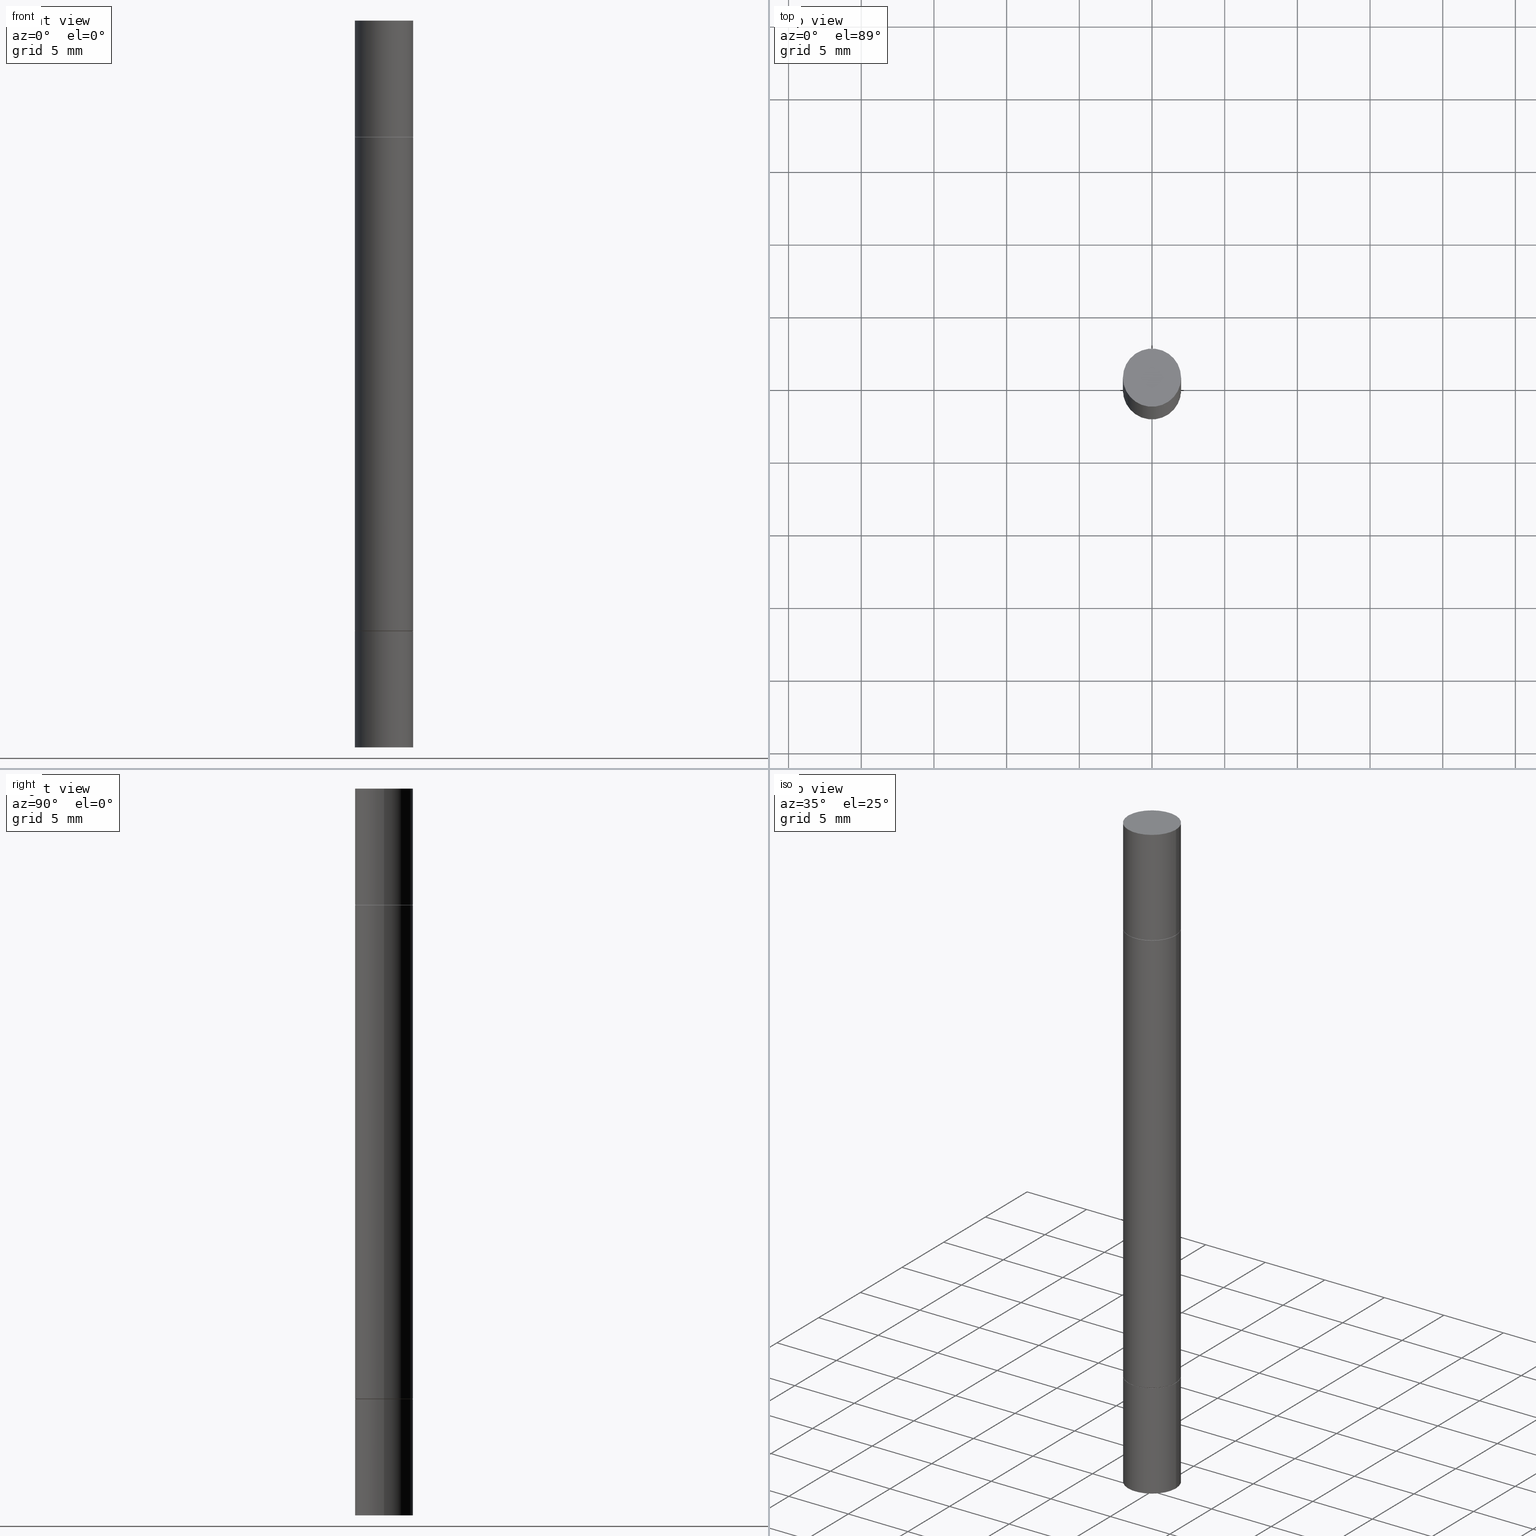
[diagram: canonical four-view strip — front | top / right | iso, engineering-drawing reading convention]
A machine part, canonical four-view strip (front | top / right | iso — engineering-drawing reading convention). The complete STEP part file that produces these views, byte-faithful:
ISO-10303-21;
HEADER;
FILE_DESCRIPTION (( 'STEP AP203' ),
    '1' );
FILE_NAME ('48932.STEP',
    '2024-03-04T15:49:05',
    ( '' ),
    ( '' ),
    'SwSTEP 2.0',
    'SolidWorks 2023',
    '' );
FILE_SCHEMA (( 'CONFIG_CONTROL_DESIGN' ));
ENDSEC;

DATA;
#1 = COORDINATED_UNIVERSAL_TIME_OFFSET ( 5, 0, .BEHIND. ) ;
#2 = CIRCLE ( 'NONE', #142, 0.07875000000000000056 ) ;
#3 = DIRECTION ( 'NONE',  ( -2.445468806185136597E-29, -3.492890411551752677E-15, -1.000000000000000000 ) ) ;
#4 = APPROVAL_DATE_TIME ( #152, #138 ) ;
#5 = ADVANCED_FACE ( 'NONE', ( #344 ), #143, .T. ) ;
#6 = FACE_OUTER_BOUND ( 'NONE', #299, .T. ) ;
#7 = EDGE_LOOP ( 'NONE', ( #641, #482, #228, #589 ) ) ;
#8 = EDGE_CURVE ( 'NONE', #506, #237, #113, .T. ) ;
#9 = VECTOR ( 'NONE', #126, 39.37007874015748143 ) ;
#10 = AXIS2_PLACEMENT_3D ( 'NONE', #165, #583, #389 ) ;
#11 = CARTESIAN_POINT ( 'NONE',  ( 0.000000000000000000, -6.874367895326177521E-15, -1.968499999999999694 ) ) ;
#12 = DIRECTION ( 'NONE',  ( 2.445468806185136597E-29, 3.492890411551752677E-15, 1.000000000000000000 ) ) ;
#13 = DIRECTION ( 'NONE',  ( 1.000000000000000000, -6.982962677686265922E-15, 9.839502134516470631E-33 ) ) ;
#14 = DIRECTION ( 'NONE',  ( 1.000000000000000000, -6.982962677686273021E-15, 0.000000000000000000 ) ) ;
#15 = DIRECTION ( 'NONE',  ( 1.000000000000000000, -6.982962677686268288E-15, 0.000000000000000000 ) ) ;
#16 = ORIENTED_EDGE ( 'NONE', *, *, #133, .F. ) ;
#17 = CARTESIAN_POINT ( 'NONE',  ( 0.07874999999999997280, -6.319581223306091410E-15, -1.652499999999999858 ) ) ;
#18 = VERTEX_POINT ( 'NONE', #177 ) ;
#19 = ORIENTED_EDGE ( 'NONE', *, *, #376, .T. ) ;
#20 = CARTESIAN_POINT ( 'NONE',  ( 0.000000000000000000, -6.874367895326177521E-15, -1.968499999999999694 ) ) ;
#21 = CONICAL_SURFACE ( 'NONE', #149, 0.07774999999999999967, 0.7853981633974056464 ) ;
#22 = CIRCLE ( 'NONE', #556, 0.07874999999999987566 ) ;
#23 = DIRECTION ( 'NONE',  ( 2.445468806185136597E-29, 3.492890411551752677E-15, 1.000000000000000000 ) ) ;
#24 = ORIENTED_EDGE ( 'NONE', *, *, #133, .T. ) ;
#25 = EDGE_CURVE ( 'NONE', #595, #18, #361, .T. ) ;
#26 = DIRECTION ( 'NONE',  ( -2.438088387897959769E-29, -3.492890411551753071E-15, -1.000000000000000000 ) ) ;
#27 = DIRECTION ( 'NONE',  ( -2.445468806185136877E-29, -3.492890411551753071E-15, -1.000000000000000000 ) ) ;
#28 = EDGE_LOOP ( 'NONE', ( #447, #532, #125, #76 ) ) ;
#29 = ORIENTED_EDGE ( 'NONE', *, *, #120, .F. ) ;
#30 = DIRECTION ( 'NONE',  ( -2.445468806185136597E-29, 3.491481338843145583E-15, 1.000000000000000000 ) ) ;
#31 = CC_DESIGN_PERSON_AND_ORGANIZATION_ASSIGNMENT ( #637, #471, ( #222 ) ) ;
#32 = ORIENTED_EDGE ( 'NONE', *, *, #325, .T. ) ;
#33 = VERTEX_POINT ( 'NONE', #655 ) ;
#34 = CARTESIAN_POINT ( 'NONE',  ( 4.813905344975441835E-29, 1.386879813447681415E-18, 2.731847993664263218E-16 ) ) ;
#35 = DIRECTION ( 'NONE',  ( -2.445468806185136597E-29, 3.491481338843145583E-15, 1.000000000000000000 ) ) ;
#36 = CIRCLE ( 'NONE', #525, 0.07874999999999997280 ) ;
#37 = CALENDAR_DATE ( 2024, 4, 3 ) ;
#38 = ORIENTED_EDGE ( 'NONE', *, *, #99, .T. ) ;
#39 = PLANE ( 'NONE',  #463 ) ;
#40 = EDGE_CURVE ( 'NONE', #195, #324, #334, .T. ) ;
#41 = CARTESIAN_POINT ( 'NONE',  ( 4.043582671027123201E-29, -1.098873599825354270E-15, -0.3149999999999997802 ) ) ;
#42 = CARTESIAN_POINT ( 'NONE',  ( -0.07774999999999999967, -5.654698804986176969E-16, -0.3149999999999997802 ) ) ;
#43 = CIRCLE ( 'NONE', #256, 0.07874999999999997280 ) ;
#44 = CC_DESIGN_APPROVAL ( #106, ( #224 ) ) ;
#45 = DIRECTION ( 'NONE',  ( 1.000000000000000000, -6.982962677686266711E-15, 0.000000000000000000 ) ) ;
#46 = EDGE_CURVE ( 'NONE', #78, #614, #183, .T. ) ;
#47 = CALENDAR_DATE ( 2024, 4, 3 ) ;
#48 = DIRECTION ( 'NONE',  ( -1.000000000000000000, 6.982962677686265922E-15, -9.839502134516470631E-33 ) ) ;
#49 = ORIENTED_EDGE ( 'NONE', *, *, #8, .T. ) ;
#50 = PLANE ( 'NONE',  #486 ) ;
#51 = DIRECTION ( 'NONE',  ( 1.000000000000000000, -6.982962677686261977E-15, 0.000000000000000000 ) ) ;
#52 = CARTESIAN_POINT ( 'NONE',  ( 0.000000000000000000, -6.874367895326177521E-15, -1.968499999999999694 ) ) ;
#53 = ADVANCED_FACE ( 'NONE', ( #647 ), #339, .F. ) ;
#54 = AXIS2_PLACEMENT_3D ( 'NONE', #520, #677, #104 ) ;
#55 = FACE_OUTER_BOUND ( 'NONE', #260, .T. ) ;
#56 = SHAPE_DEFINITION_REPRESENTATION ( #426, #371 ) ;
#57 = AXIS2_PLACEMENT_3D ( 'NONE', #34, #545, #246 ) ;
#58 = CARTESIAN_POINT ( 'NONE',  ( 4.043582671027123201E-29, -5.773164393777141072E-15, -1.653499999999999970 ) ) ;
#59 = MANIFOLD_SOLID_BREP ( 'Mirror1[1]', #390 ) ;
#60 = DIRECTION ( 'NONE',  ( -0.7071067811865173747, 2.381258160590954538E-15, -0.7071067811865776598 ) ) ;
#61 = MANIFOLD_SOLID_BREP ( 'Mirror1[3]', #420 ) ;
#62 = DIRECTION ( 'NONE',  ( -2.445468806185136597E-29, 3.491481338843145583E-15, 1.000000000000000000 ) ) ;
#63 = DATE_AND_TIME ( #65, #85 ) ;
#64 = EDGE_LOOP ( 'NONE', ( #509, #226, #297, #382 ) ) ;
#65 = CALENDAR_DATE ( 2024, 4, 3 ) ;
#66 = EDGE_CURVE ( 'NONE', #560, #137, #512, .T. ) ;
#67 = AXIS2_PLACEMENT_3D ( 'NONE', #461, #676, #588 ) ;
#68 = AXIS2_PLACEMENT_3D ( 'NONE', #58, #300, #448 ) ;
#69 = ORIENTED_EDGE ( 'NONE', *, *, #376, .F. ) ;
#70 = DIRECTION ( 'NONE',  ( 2.445468806185136597E-29, 3.492890411551752677E-15, 1.000000000000000000 ) ) ;
#71 = ORIENTED_EDGE ( 'NONE', *, *, #120, .T. ) ;
#72 = MANIFOLD_SOLID_BREP ( 'Combine1', #629 ) ;
#73 = PLANE ( 'NONE',  #168 ) ;
#74 = FACE_OUTER_BOUND ( 'NONE', #7, .T. ) ;
#75 = DIRECTION ( 'NONE',  ( 0.000000000000000000, 3.492185875197449524E-15, 1.000000000000000000 ) ) ;
#76 = ORIENTED_EDGE ( 'NONE', *, *, #393, .F. ) ;
#77 = DIRECTION ( 'NONE',  ( 1.000000000000000000, -6.982962677686266711E-15, 0.000000000000000000 ) ) ;
#78 = VERTEX_POINT ( 'NONE', #516 ) ;
#79 = CARTESIAN_POINT ( 'NONE',  ( 0.000000000000000000, -6.874367895326177521E-15, -1.968499999999999694 ) ) ;
#80 = ADVANCED_FACE ( 'NONE', ( #244 ), #349, .T. ) ;
#81 = ORIENTED_EDGE ( 'NONE', *, *, #652, .F. ) ;
#82 = DIRECTION ( 'NONE',  ( 1.000000000000000000, -6.982962677686265922E-15, 0.000000000000000000 ) ) ;
#83 = VECTOR ( 'NONE', #60, 39.37007874015748143 ) ;
#84 = AXIS2_PLACEMENT_3D ( 'NONE', #173, #276, #13 ) ;
#85 = LOCAL_TIME ( 10, 49, 5.000000000000000000, #539 ) ;
#86 = ORIENTED_EDGE ( 'NONE', *, *, #156, .F. ) ;
#87 = ORIENTED_EDGE ( 'NONE', *, *, #174, .T. ) ;
#88 = DIRECTION ( 'NONE',  ( 1.000000000000000000, -6.982962677686268288E-15, 0.000000000000000000 ) ) ;
#89 = EDGE_LOOP ( 'NONE', ( #600, #131 ) ) ;
#90 = ORIENTED_EDGE ( 'NONE', *, *, #255, .T. ) ;
#91 = CARTESIAN_POINT ( 'NONE',  ( -0.07774999999999999967, -5.637860767055079618E-16, -0.3149999999999997802 ) ) ;
#92 = DIRECTION ( 'NONE',  ( -2.445468806185136877E-29, -3.492890411551753071E-15, -1.000000000000000000 ) ) ;
#93 = VECTOR ( 'NONE', #326, 39.37007874015748143 ) ;
#94 = AXIS2_PLACEMENT_3D ( 'NONE', #352, #337, #242 ) ;
#95 = ADVANCED_FACE ( 'NONE', ( #569 ), #21, .T. ) ;
#96 = DIRECTION ( 'NONE',  ( -2.445468806185136597E-29, 3.491481338843145583E-15, 1.000000000000000000 ) ) ;
#97 = CYLINDRICAL_SURFACE ( 'NONE', #630, 0.07875000000000000056 ) ;
#98 = CALENDAR_DATE ( 2024, 4, 3 ) ;
#99 = EDGE_CURVE ( 'NONE', #555, #543, #453, .T. ) ;
#100 = FACE_OUTER_BOUND ( 'NONE', #273, .T. ) ;
#101 = CARTESIAN_POINT ( 'NONE',  ( 4.043582671027123201E-29, -1.098873599825354270E-15, -0.3149999999999997802 ) ) ;
#102 = AXIS2_PLACEMENT_3D ( 'NONE', #487, #12, #551 ) ;
#103 = VECTOR ( 'NONE', #536, 39.37007874015748143 ) ;
#104 = DIRECTION ( 'NONE',  ( 1.000000000000000000, -6.982962677686273021E-15, 0.000000000000000000 ) ) ;
#105 = APPLICATION_PROTOCOL_DEFINITION ( 'international standard', 'config_control_design', 1994, #618 ) ;
#106 = APPROVAL ( #528, 'UNSPECIFIED' ) ;
#107 = VERTEX_POINT ( 'NONE', #665 ) ;
#108 = DIRECTION ( 'NONE',  ( 2.445468806185136597E-29, 3.492890411551752677E-15, 1.000000000000000000 ) ) ;
#109 = CARTESIAN_POINT ( 'NONE',  ( 4.041137202220937598E-29, -1.102366490236907793E-15, -0.3159999999999998366 ) ) ;
#110 = FACE_OUTER_BOUND ( 'NONE', #64, .T. ) ;
#111 = EDGE_LOOP ( 'NONE', ( #291, #439 ) ) ;
#112 = DIRECTION ( 'NONE',  ( 1.000000000000000000, -6.982962677686265922E-15, 4.876176775795935232E-29 ) ) ;
#113 = CIRCLE ( 'NONE', #102, 0.07774999999999999967 ) ;
#114 = CIRCLE ( 'NONE', #567, 0.07774999999999999967 ) ;
#115 = PLANE ( 'NONE',  #84 ) ;
#116 = CARTESIAN_POINT ( 'NONE',  ( 5.499083108678415648E-16, 0.07874999999999997280, 0.000000000000000000 ) ) ;
#117 = DIRECTION ( 'NONE',  ( 1.000000000000000000, -6.982962677686264344E-15, 0.000000000000000000 ) ) ;
#118 = DESIGN_CONTEXT ( 'detailed design', #618, 'design' ) ;
#119 = ORIENTED_EDGE ( 'NONE', *, *, #462, .T. ) ;
#120 = EDGE_CURVE ( 'NONE', #245, #649, #582, .T. ) ;
#121 = ORIENTED_EDGE ( 'NONE', *, *, #470, .F. ) ;
#122 = FACE_OUTER_BOUND ( 'NONE', #431, .T. ) ;
#123 = PERSON_AND_ORGANIZATION ( #342, #412 ) ;
#124 = CARTESIAN_POINT ( 'NONE',  ( -0.07874999999999987566, -6.334103678001671209E-15, -1.968499999999999694 ) ) ;
#125 = ORIENTED_EDGE ( 'NONE', *, *, #444, .T. ) ;
#126 = DIRECTION ( 'NONE',  ( -2.445468806185136877E-29, -3.492890411551753071E-15, -1.000000000000000000 ) ) ;
#127 = ORIENTED_EDGE ( 'NONE', *, *, #199, .F. ) ;
#128 = CIRCLE ( 'NONE', #598, 0.07874999999999997280 ) ;
#129 = DIRECTION ( 'NONE',  ( -2.445468806185136597E-29, -3.492890411551752677E-15, -1.000000000000000000 ) ) ;
#130 = EDGE_LOOP ( 'NONE', ( #192, #446, #272, #281 ) ) ;
#131 = ORIENTED_EDGE ( 'NONE', *, *, #537, .T. ) ;
#132 = DIRECTION ( 'NONE',  ( 1.000000000000000000, -6.982962677686265922E-15, 0.000000000000000000 ) ) ;
#133 = EDGE_CURVE ( 'NONE', #555, #240, #43, .T. ) ;
#134 = EDGE_LOOP ( 'NONE', ( #69, #16, #38, #119 ) ) ;
#135 = ORIENTED_EDGE ( 'NONE', *, *, #609, .T. ) ;
#136 = LINE ( 'NONE', #510, #160 ) ;
#137 = VERTEX_POINT ( 'NONE', #153 ) ;
#138 = APPROVAL ( #148, 'UNSPECIFIED' ) ;
#139 = EDGE_LOOP ( 'NONE', ( #81, #121, #32, #182 ) ) ;
#140 = FACE_OUTER_BOUND ( 'NONE', #188, .T. ) ;
#141 = AXIS2_PLACEMENT_3D ( 'NONE', #251, #364, #254 ) ;
#142 = AXIS2_PLACEMENT_3D ( 'NONE', #433, #62, #590 ) ;
#143 = CYLINDRICAL_SURFACE ( 'NONE', #197, 0.07874999999999987566 ) ;
#144 = EDGE_LOOP ( 'NONE', ( #378, #86 ) ) ;
#145 = FACE_OUTER_BOUND ( 'NONE', #134, .T. ) ;
#146 = DATE_AND_TIME ( #47, #351 ) ;
#147 = CARTESIAN_POINT ( 'NONE',  ( 0.07774999999999999967, -1.641798948015461602E-15, -0.3149999999999997802 ) ) ;
#148 = APPROVAL_STATUS ( 'not_yet_approved' ) ;
#149 = AXIS2_PLACEMENT_3D ( 'NONE', #669, #678, #415 ) ;
#150 = CIRCLE ( 'NONE', #422, 0.07875000000000000056 ) ;
#151 = CARTESIAN_POINT ( 'NONE',  ( 5.499083108678337748E-16, 0.07874999999999889033, -0.3150000000000000577 ) ) ;
#152 = DATE_AND_TIME ( #98, #172 ) ;
#153 = CARTESIAN_POINT ( 'NONE',  ( -0.07874999999999987566, -1.729164281672128441E-15, -0.9842499999999998472 ) ) ;
#154 = EDGE_CURVE ( 'NONE', #397, #495, #418, .T. ) ;
#155 = DIRECTION ( 'NONE',  ( -0.7071067811865173747, 7.493145998870245297E-15, 0.7071067811865776598 ) ) ;
#156 = EDGE_CURVE ( 'NONE', #437, #107, #554, .T. ) ;
#157 = DIRECTION ( 'NONE',  ( 1.000000000000000000, -6.982962677686261977E-15, 0.000000000000000000 ) ) ;
#158 =( NAMED_UNIT ( * ) SI_UNIT ( $, .STERADIAN. ) SOLID_ANGLE_UNIT ( ) );
#159 = VECTOR ( 'NONE', #648, 39.37007874015748143 ) ;
#160 = VECTOR ( 'NONE', #287, 39.37007874015748143 ) ;
#161 = ORIENTED_EDGE ( 'NONE', *, *, #46, .T. ) ;
#162 = APPROVAL_STATUS ( 'not_yet_approved' ) ;
#163 = DIRECTION ( 'NONE',  ( -2.445468806185136597E-29, -3.492890411551752677E-15, -1.000000000000000000 ) ) ;
#164 = APPROVAL_ROLE ( '' ) ;
#165 = CARTESIAN_POINT ( 'NONE',  ( 0.000000000000000000, -6.874367895326177521E-15, -1.968499999999999694 ) ) ;
#166 = LINE ( 'NONE', #540, #534 ) ;
#167 = CONICAL_SURFACE ( 'NONE', #67, 0.07774999999999999967, 0.7853981633974056464 ) ;
#168 = AXIS2_PLACEMENT_3D ( 'NONE', #663, #26, #238 ) ;
#169 = ORIENTED_EDGE ( 'NONE', *, *, #270, .T. ) ;
#170 = DIRECTION ( 'NONE',  ( 1.000000000000000000, -6.982962677686265922E-15, 4.876176775795935793E-29 ) ) ;
#171 = COORDINATED_UNIVERSAL_TIME_OFFSET ( 5, 0, .BEHIND. ) ;
#172 = LOCAL_TIME ( 10, 49, 5.000000000000000000, #360 ) ;
#173 = CARTESIAN_POINT ( 'NONE',  ( 4.043582671027123201E-29, -1.098873599825354270E-15, -0.3149999999999997802 ) ) ;
#174 = EDGE_CURVE ( 'NONE', #237, #240, #423, .T. ) ;
#175 = ORIENTED_EDGE ( 'NONE', *, *, #366, .F. ) ;
#176 = ORIENTED_EDGE ( 'NONE', *, *, #660, .F. ) ;
#177 = CARTESIAN_POINT ( 'NONE',  ( 0.07875000000000000056, -1.648781910693147813E-15, -0.3149999999999997802 ) ) ;
#178 = ORIENTED_EDGE ( 'NONE', *, *, #66, .T. ) ;
#179 = CYLINDRICAL_SURFACE ( 'NONE', #514, 0.07874999999999987566 ) ;
#180 = ADVANCED_FACE ( 'NONE', ( #110 ), #271, .T. ) ;
#181 = EDGE_LOOP ( 'NONE', ( #541, #601 ) ) ;
#182 = ORIENTED_EDGE ( 'NONE', *, *, #435, .T. ) ;
#183 = CIRCLE ( 'NONE', #290, 0.07875000000000000056 ) ;
#184 = CIRCLE ( 'NONE', #233, 0.07875000000000000056 ) ;
#185 = ADVANCED_FACE ( 'NONE', ( #316 ), #263, .T. ) ;
#186 = CARTESIAN_POINT ( 'NONE',  ( 4.043582671027123201E-29, -1.098873599825354270E-15, -0.3149999999999997802 ) ) ;
#187 = CARTESIAN_POINT ( 'NONE',  ( 4.813905344975441835E-29, 1.386879813447681415E-18, 2.731847993664263218E-16 ) ) ;
#188 = EDGE_LOOP ( 'NONE', ( #354, #659, #432, #392 ) ) ;
#189 = CARTESIAN_POINT ( 'NONE',  ( 0.07875000000000000056, -1.648781910693147813E-15, -0.3149999999999997802 ) ) ;
#190 = ORIENTED_EDGE ( 'NONE', *, *, #8, .F. ) ;
#191 = EDGE_CURVE ( 'NONE', #502, #490, #429, .T. ) ;
#192 = ORIENTED_EDGE ( 'NONE', *, *, #409, .T. ) ;
#193 = CARTESIAN_POINT ( 'NONE',  ( -0.07875000000000000056, -6.334103678001670420E-15, -1.968499999999999694 ) ) ;
#194 = ORIENTED_EDGE ( 'NONE', *, *, #252, .T. ) ;
#195 = VERTEX_POINT ( 'NONE', #395 ) ;
#196 = CARTESIAN_POINT ( 'NONE',  ( 4.813905344975441835E-29, 1.386879813447681415E-18, 2.731847993664263218E-16 ) ) ;
#197 = AXIS2_PLACEMENT_3D ( 'NONE', #79, #332, #14 ) ;
#198 = AXIS2_PLACEMENT_3D ( 'NONE', #488, #108, #385 ) ;
#199 = EDGE_CURVE ( 'NONE', #245, #137, #546, .T. ) ;
#200 = DIRECTION ( 'NONE',  ( 2.445468806185136597E-29, 3.492890411551752677E-15, 1.000000000000000000 ) ) ;
#201 = CYLINDRICAL_SURFACE ( 'NONE', #94, 0.07875000000000000056 ) ;
#202 = DIRECTION ( 'NONE',  ( 2.438088387897959769E-29, 3.492890411551753071E-15, 1.000000000000000000 ) ) ;
#203 = DIRECTION ( 'NONE',  ( 1.000000000000000000, -6.982962677686266711E-15, 0.000000000000000000 ) ) ;
#204 = PLANE ( 'NONE',  #485 ) ;
#205 = DIRECTION ( 'NONE',  ( 2.438088387897959769E-29, 3.492890411551753071E-15, 1.000000000000000000 ) ) ;
#206 = ADVANCED_FACE ( 'NONE', ( #74 ), #494, .T. ) ;
#207 = CIRCLE ( 'NONE', #455, 0.07875000000000000056 ) ;
#208 = CARTESIAN_POINT ( 'NONE',  ( 4.041137202220937598E-29, -1.102366490236907793E-15, -0.3159999999999998366 ) ) ;
#209 = CC_DESIGN_PERSON_AND_ORGANIZATION_ASSIGNMENT ( #633, #581, ( #317 ) ) ;
#210 =( LENGTH_UNIT ( ) NAMED_UNIT ( * ) SI_UNIT ( $, .METRE. ) );
#211 = CLOSED_SHELL ( 'NONE', ( #425, #381, #301, #180 ) ) ;
#212 = AXIS2_PLACEMENT_3D ( 'NONE', #313, #96, #358 ) ;
#213 = VECTOR ( 'NONE', #559, 39.37007874015748143 ) ;
#214 = PLANE ( 'NONE',  #473 ) ;
#215 = EDGE_CURVE ( 'NONE', #481, #286, #305, .T. ) ;
#216 = DIRECTION ( 'NONE',  ( -2.445468806185136877E-29, 3.491481338843145188E-15, 1.000000000000000000 ) ) ;
#217 = DATE_AND_TIME ( #483, #557 ) ;
#218 = CARTESIAN_POINT ( 'NONE',  ( 0.07774999999999999967, -1.641798948015461602E-15, -0.3149999999999997802 ) ) ;
#219 = ADVANCED_FACE ( 'NONE', ( #465 ), #517, .T. ) ;
#220 = CARTESIAN_POINT ( 'NONE',  ( 4.041137202220937598E-29, -5.769672912438298064E-15, -1.652499999999999858 ) ) ;
#221 = AXIS2_PLACEMENT_3D ( 'NONE', #396, #603, #257 ) ;
#222 = PRODUCT_DEFINITION_FORMATION_WITH_SPECIFIED_SOURCE ( 'ANY', '', #329, .NOT_KNOWN. ) ;
#223 = DIRECTION ( 'NONE',  ( 1.000000000000000000, -6.982962677686273021E-15, 0.000000000000000000 ) ) ;
#224 = PRODUCT_DEFINITION ( 'UNKNOWN', '', #222, #118 ) ;
#225 = CARTESIAN_POINT ( 'NONE',  ( 4.043582671027123201E-29, -1.098873599825354270E-15, -0.3149999999999997802 ) ) ;
#226 = ORIENTED_EDGE ( 'NONE', *, *, #46, .F. ) ;
#227 = LINE ( 'NONE', #438, #159 ) ;
#228 = ORIENTED_EDGE ( 'NONE', *, *, #40, .F. ) ;
#229 = PLANE ( 'NONE',  #292 ) ;
#230 = DIRECTION ( 'NONE',  ( 1.000000000000000000, -6.982962677686268288E-15, 0.000000000000000000 ) ) ;
#231 = CIRCLE ( 'NONE', #198, 0.07874999999999997280 ) ;
#232 = ORIENTED_EDGE ( 'NONE', *, *, #25, .F. ) ;
#233 = AXIS2_PLACEMENT_3D ( 'NONE', #186, #398, #88 ) ;
#234 = CIRCLE ( 'NONE', #68, 0.07774999999999999967 ) ;
#235 = DIRECTION ( 'NONE',  ( 2.445468806185136597E-29, 3.492890411551752677E-15, 1.000000000000000000 ) ) ;
#236 = DIRECTION ( 'NONE',  ( 1.000000000000000000, -6.982962677686265922E-15, 0.000000000000000000 ) ) ;
#237 = VERTEX_POINT ( 'NONE', #369 ) ;
#238 = DIRECTION ( 'NONE',  ( 1.000000000000000000, -6.982962677686265922E-15, 9.839502134516470631E-33 ) ) ;
#239 = VERTEX_POINT ( 'NONE', #513 ) ;
#240 = VERTEX_POINT ( 'NONE', #672 ) ;
#241 = ADVANCED_FACE ( 'NONE', ( #100 ), #204, .F. ) ;
#242 = DIRECTION ( 'NONE',  ( 1.000000000000000000, -6.982962677686261977E-15, 0.000000000000000000 ) ) ;
#243 = ORIENTED_EDGE ( 'NONE', *, *, #592, .F. ) ;
#244 = FACE_OUTER_BOUND ( 'NONE', #348, .T. ) ;
#245 = VERTEX_POINT ( 'NONE', #571 ) ;
#246 = DIRECTION ( 'NONE',  ( 1.000000000000000000, -6.982962677686265922E-15, 0.000000000000000000 ) ) ;
#247 = CONICAL_SURFACE ( 'NONE', #212, 0.07774999999999999967, 0.7853981633974056464 ) ;
#248 = VECTOR ( 'NONE', #650, 39.37007874015748143 ) ;
#249 = ADVANCED_FACE ( 'NONE', ( #309 ), #167, .T. ) ;
#250 = DATE_AND_TIME ( #37, #430 ) ;
#251 = CARTESIAN_POINT ( 'NONE',  ( 5.499083108678415648E-16, 0.07874999999999997280, 0.000000000000000000 ) ) ;
#252 = EDGE_CURVE ( 'NONE', #506, #555, #372, .T. ) ;
#253 = DIRECTION ( 'NONE',  ( 0.000000000000000000, 0.000000000000000000, 1.000000000000000000 ) ) ;
#254 = DIRECTION ( 'NONE',  ( -1.000000000000000000, 6.982962677686265922E-15, -9.839502134516470631E-33 ) ) ;
#255 = EDGE_CURVE ( 'NONE', #614, #490, #166, .T. ) ;
#256 = AXIS2_PLACEMENT_3D ( 'NONE', #674, #623, #511 ) ;
#257 = DIRECTION ( 'NONE',  ( 0.000000000000000000, 1.000000000000000000, -3.469013325287958815E-15 ) ) ;
#258 = CARTESIAN_POINT ( 'NONE',  ( 0.000000000000000000, 0.000000000000000000, 0.000000000000000000 ) ) ;
#259 = CARTESIAN_POINT ( 'NONE',  ( -0.07875000000000000056, -5.763520300233858771E-15, -1.653499999999999970 ) ) ;
#260 = EDGE_LOOP ( 'NONE', ( #388, #611, #71, #451 ) ) ;
#261 = PLANE ( 'NONE',  #264 ) ;
#262 = SECURITY_CLASSIFICATION_LEVEL ( 'unclassified' ) ;
#263 = CYLINDRICAL_SURFACE ( 'NONE', #421, 0.07875000000000000056 ) ;
#264 = AXIS2_PLACEMENT_3D ( 'NONE', #370, #533, #170 ) ;
#265 = EDGE_CURVE ( 'NONE', #490, #502, #454, .T. ) ;
#266 = CIRCLE ( 'NONE', #653, 0.07774999999999999967 ) ;
#267 = ORIENTED_EDGE ( 'NONE', *, *, #66, .F. ) ;
#268 = DIRECTION ( 'NONE',  ( 1.000000000000000000, -6.982962677686266711E-15, 0.000000000000000000 ) ) ;
#269 = CARTESIAN_POINT ( 'NONE',  ( -0.07774999999999999967, -5.654698804986176969E-16, -0.3149999999999997802 ) ) ;
#270 = EDGE_CURVE ( 'NONE', #279, #543, #227, .T. ) ;
#271 = CYLINDRICAL_SURFACE ( 'NONE', #577, 0.07875000000000000056 ) ;
#272 = ORIENTED_EDGE ( 'NONE', *, *, #462, .F. ) ;
#273 = EDGE_LOOP ( 'NONE', ( #345, #232 ) ) ;
#274 = FACE_OUTER_BOUND ( 'NONE', #111, .T. ) ;
#275 = DATE_TIME_ROLE ( 'classification_date' ) ;
#276 = DIRECTION ( 'NONE',  ( -2.438088387897959769E-29, -3.492890411551753071E-15, -1.000000000000000000 ) ) ;
#277 = CC_DESIGN_PERSON_AND_ORGANIZATION_ASSIGNMENT ( #587, #477, ( #222 ) ) ;
#278 = EDGE_CURVE ( 'NONE', #78, #502, #387, .T. ) ;
#279 = VERTEX_POINT ( 'NONE', #333 ) ;
#280 = CIRCLE ( 'NONE', #612, 0.07774999999999999967 ) ;
#281 = ORIENTED_EDGE ( 'NONE', *, *, #270, .F. ) ;
#282 = DIRECTION ( 'NONE',  ( -2.445468806185136877E-29, -3.492890411551753071E-15, -1.000000000000000000 ) ) ;
#283 = ORIENTED_EDGE ( 'NONE', *, *, #99, .F. ) ;
#284 = DIRECTION ( 'NONE',  ( 2.445468806185136597E-29, 3.492890411551752677E-15, 1.000000000000000000 ) ) ;
#285 = ORIENTED_EDGE ( 'NONE', *, *, #252, .F. ) ;
#286 = VERTEX_POINT ( 'NONE', #147 ) ;
#287 = DIRECTION ( 'NONE',  ( -2.445468806185136877E-29, 3.491481338843145188E-15, 1.000000000000000000 ) ) ;
#288 = CARTESIAN_POINT ( 'NONE',  ( 0.000000000000000000, 0.000000000000000000, 0.000000000000000000 ) ) ;
#289 = ORIENTED_EDGE ( 'NONE', *, *, #537, .F. ) ;
#290 = AXIS2_PLACEMENT_3D ( 'NONE', #187, #23, #236 ) ;
#291 = ORIENTED_EDGE ( 'NONE', *, *, #409, .F. ) ;
#292 = AXIS2_PLACEMENT_3D ( 'NONE', #668, #440, #293 ) ;
#293 = DIRECTION ( 'NONE',  ( -1.000000000000000000, 6.982962677686265922E-15, -4.876176775795935793E-29 ) ) ;
#294 = CARTESIAN_POINT ( 'NONE',  ( 4.043582671027123201E-29, -1.098873599825354270E-15, -0.3149999999999997802 ) ) ;
#295 = ORIENTED_EDGE ( 'NONE', *, *, #154, .F. ) ;
#296 = ADVANCED_FACE ( 'NONE', ( #673 ), #247, .T. ) ;
#297 = ORIENTED_EDGE ( 'NONE', *, *, #278, .T. ) ;
#298 = DIRECTION ( 'NONE',  ( 1.000000000000000000, -6.982962677686266711E-15, 0.000000000000000000 ) ) ;
#299 = EDGE_LOOP ( 'NONE', ( #500, #90, #607, #350 ) ) ;
#300 = DIRECTION ( 'NONE',  ( -2.445468806185136597E-29, 3.491481338843145583E-15, 1.000000000000000000 ) ) ;
#301 = ADVANCED_FACE ( 'NONE', ( #627 ), #39, .F. ) ;
#302 = MANIFOLD_SOLID_BREP ( 'Body-Move/Copy2[1]', #472 ) ;
#303 = LINE ( 'NONE', #632, #93 ) ;
#304 =( CONVERSION_BASED_UNIT ( 'INCH', #524 ) LENGTH_UNIT ( ) NAMED_UNIT ( #478 ) );
#305 = CIRCLE ( 'NONE', #638, 0.07774999999999999967 ) ;
#306 = ADVANCED_FACE ( 'NONE', ( #572 ), #97, .T. ) ;
#307 = DIRECTION ( 'NONE',  ( 1.000000000000000000, 0.000000000000000000, 0.000000000000000000 ) ) ;
#308 = DIRECTION ( 'NONE',  ( -2.445468806185136877E-29, -3.492890411551753071E-15, -1.000000000000000000 ) ) ;
#309 = FACE_OUTER_BOUND ( 'NONE', #656, .T. ) ;
#310 = DIRECTION ( 'NONE',  ( -2.445468806185136597E-29, -3.492890411551752677E-15, -1.000000000000000000 ) ) ;
#311 = DIRECTION ( 'NONE',  ( -0.7071067811865173747, 2.381258160590954538E-15, -0.7071067811865776598 ) ) ;
#312 = DIRECTION ( 'NONE',  ( -2.445468806185136597E-29, -3.492890411551752677E-15, -1.000000000000000000 ) ) ;
#313 = CARTESIAN_POINT ( 'NONE',  ( 4.043582671027123201E-29, -5.773164393777141072E-15, -1.653499999999999970 ) ) ;
#314 = DIRECTION ( 'NONE',  ( -0.000000000000000000, -3.492185875197449130E-15, -1.000000000000000000 ) ) ;
#315 = VECTOR ( 'NONE', #636, 39.37007874015748143 ) ;
#316 = FACE_OUTER_BOUND ( 'NONE', #28, .T. ) ;
#317 = SECURITY_CLASSIFICATION ( '', '', #262 ) ;
#318 = ADVANCED_FACE ( 'NONE', ( #527 ), #578, .T. ) ;
#319 = ORIENTED_EDGE ( 'NONE', *, *, #680, .T. ) ;
#320 = EDGE_LOOP ( 'NONE', ( #479, #662 ) ) ;
#321 = CARTESIAN_POINT ( 'NONE',  ( 5.499083108678415648E-16, 0.07874999999999311717, -1.968500000000000361 ) ) ;
#322 = AXIS2_PLACEMENT_3D ( 'NONE', #586, #383, #268 ) ;
#323 =( GEOMETRIC_REPRESENTATION_CONTEXT ( 3 ) GLOBAL_UNCERTAINTY_ASSIGNED_CONTEXT ( ( #584 ) ) GLOBAL_UNIT_ASSIGNED_CONTEXT ( ( #304, #419, #158 ) ) REPRESENTATION_CONTEXT ( 'NONE', 'WORKASPACE' ) );
#324 = VERTEX_POINT ( 'NONE', #259 ) ;
#325 = EDGE_CURVE ( 'NONE', #286, #649, #303, .T. ) ;
#326 = DIRECTION ( 'NONE',  ( 0.7071067811865173747, -7.407546758114139682E-15, -0.7071067811865776598 ) ) ;
#327 = DIRECTION ( 'NONE',  ( 2.438088387897959769E-29, 3.492890411551753071E-15, 1.000000000000000000 ) ) ;
#328 = CC_DESIGN_PERSON_AND_ORGANIZATION_ASSIGNMENT ( #575, #579, ( #329 ) ) ;
#329 = PRODUCT ( '48932', '48932', '', ( #617 ) ) ;
#330 = CARTESIAN_POINT ( 'NONE',  ( -0.07774999999999999967, -5.215418962375440876E-15, -1.653499999999999970 ) ) ;
#331 = CARTESIAN_POINT ( 'NONE',  ( -0.07875000000000000056, -5.763520300233858771E-15, -1.968500000000000139 ) ) ;
#332 = DIRECTION ( 'NONE',  ( -2.445468806185136597E-29, -3.492890411551752677E-15, -1.000000000000000000 ) ) ;
#333 = CARTESIAN_POINT ( 'NONE',  ( 0.07774999999999999967, -6.316089741967247614E-15, -1.653499999999999970 ) ) ;
#334 = CIRCLE ( 'NONE', #499, 0.07875000000000000056 ) ;
#335 = VECTOR ( 'NONE', #311, 39.37007874015748143 ) ;
#336 = EDGE_LOOP ( 'NONE', ( #289, #353, #604, #243 ) ) ;
#337 = DIRECTION ( 'NONE',  ( -2.445468806185136597E-29, -3.492890411551752677E-15, -1.000000000000000000 ) ) ;
#338 = DIRECTION ( 'NONE',  ( 2.445468806185136597E-29, 3.492890411551752677E-15, 1.000000000000000000 ) ) ;
#339 = PLANE ( 'NONE',  #523 ) ;
#340 = ADVANCED_FACE ( 'NONE', ( #373 ), #214, .T. ) ;
#341 = ORIENTED_EDGE ( 'NONE', *, *, #199, .T. ) ;
#342 = PERSON ( 'UNSPECIFIED', 'UNSPECIFIED', 'UNSPECIFIED', ('UNSPECIFIED'), ('UNSPECIFIED'), ('UNSPECIFIED') ) ;
#343 = LINE ( 'NONE', #402, #248 ) ;
#344 = FACE_OUTER_BOUND ( 'NONE', #492, .T. ) ;
#345 = ORIENTED_EDGE ( 'NONE', *, *, #484, .F. ) ;
#346 = CARTESIAN_POINT ( 'NONE',  ( -0.07875000000000000056, -8.479142681445664027E-18, -0.3149999999999997802 ) ) ;
#347 = ADVANCED_FACE ( 'NONE', ( #274 ), #261, .F. ) ;
#348 = EDGE_LOOP ( 'NONE', ( #580, #190, #194, #24 ) ) ;
#349 = CONICAL_SURFACE ( 'NONE', #403, 0.07774999999999999967, 0.7853981633974056464 ) ;
#350 = ORIENTED_EDGE ( 'NONE', *, *, #278, .F. ) ;
#351 = LOCAL_TIME ( 10, 49, 5.000000000000000000, #1 ) ;
#352 = CARTESIAN_POINT ( 'NONE',  ( 0.000000000000000000, -6.874367895326177521E-15, -1.968499999999999694 ) ) ;
#353 = ORIENTED_EDGE ( 'NONE', *, *, #576, .T. ) ;
#354 = ORIENTED_EDGE ( 'NONE', *, *, #576, .F. ) ;
#355 = CYLINDRICAL_SURFACE ( 'NONE', #631, 0.07874999999999987566 ) ;
#356 = ADVANCED_FACE ( 'NONE', ( #55 ), #621, .T. ) ;
#357 = DIRECTION ( 'NONE',  ( 1.000000000000000000, -6.982962677686266711E-15, 0.000000000000000000 ) ) ;
#358 = DIRECTION ( 'NONE',  ( 1.000000000000000000, -6.982962677686261977E-15, 0.000000000000000000 ) ) ;
#359 = PERSON_AND_ORGANIZATION ( #342, #412 ) ;
#360 = COORDINATED_UNIVERSAL_TIME_OFFSET ( 5, 0, .BEHIND. ) ;
#361 = CIRCLE ( 'NONE', #664, 0.07875000000000000056 ) ;
#362 = VECTOR ( 'NONE', #92, 39.37007874015748143 ) ;
#363 = CARTESIAN_POINT ( 'NONE',  ( 4.043582671027123201E-29, -1.098873599825354270E-15, -0.3149999999999997802 ) ) ;
#364 = DIRECTION ( 'NONE',  ( 2.438088387897959769E-29, 3.492890411551753071E-15, 1.000000000000000000 ) ) ;
#365 = APPLICATION_PROTOCOL_DEFINITION ( 'international standard', 'config_control_design', 1994, #646 ) ;
#366 = EDGE_CURVE ( 'NONE', #240, #555, #231, .T. ) ;
#367 = VECTOR ( 'NONE', #27, 39.37007874015748143 ) ;
#368 = VECTOR ( 'NONE', #216, 39.37007874015748143 ) ;
#369 = CARTESIAN_POINT ( 'NONE',  ( -0.07774999999999999967, -5.637860767055079618E-16, -0.3149999999999997802 ) ) ;
#370 = CARTESIAN_POINT ( 'NONE',  ( 4.043582671027123201E-29, -5.773164393777141072E-15, -1.653499999999999970 ) ) ;
#371 = ADVANCED_BREP_SHAPE_REPRESENTATION ( '48932', ( #302, #59, #61, #530, #72, #501 ), #323 ) ;
#372 = LINE ( 'NONE', #218, #315 ) ;
#373 = FACE_OUTER_BOUND ( 'NONE', #144, .T. ) ;
#374 = APPROVAL_DATE_TIME ( #217, #468 ) ;
#375 = FACE_OUTER_BOUND ( 'NONE', #443, .T. ) ;
#376 = EDGE_CURVE ( 'NONE', #240, #495, #428, .T. ) ;
#377 = CARTESIAN_POINT ( 'NONE',  ( 0.000000000000000000, 0.000000000000000000, 0.000000000000000000 ) ) ;
#378 = ORIENTED_EDGE ( 'NONE', *, *, #628, .F. ) ;
#379 = VECTOR ( 'NONE', #155, 39.37007874015748143 ) ;
#380 = CIRCLE ( 'NONE', #475, 0.07875000000000000056 ) ;
#381 = ADVANCED_FACE ( 'NONE', ( #122 ), #50, .T. ) ;
#382 = ORIENTED_EDGE ( 'NONE', *, *, #191, .T. ) ;
#383 = DIRECTION ( 'NONE',  ( -2.445468806185136597E-29, -3.492890411551752677E-15, -1.000000000000000000 ) ) ;
#384 = DIRECTION ( 'NONE',  ( 2.445468806185136597E-29, 3.492890411551752677E-15, 1.000000000000000000 ) ) ;
#385 = DIRECTION ( 'NONE',  ( 1.000000000000000000, -6.982962677686267499E-15, 0.000000000000000000 ) ) ;
#386 = DIRECTION ( 'NONE',  ( -2.445468806185136597E-29, 3.491481338843145583E-15, 1.000000000000000000 ) ) ;
#387 = LINE ( 'NONE', #594, #9 ) ;
#388 = ORIENTED_EDGE ( 'NONE', *, *, #215, .F. ) ;
#389 = DIRECTION ( 'NONE',  ( 1.000000000000000000, -6.982962677686261977E-15, 0.000000000000000000 ) ) ;
#390 = CLOSED_SHELL ( 'NONE', ( #5, #356, #53, #562, #505, #318 ) ) ;
#391 = AXIS2_PLACEMENT_3D ( 'NONE', #608, #129, #298 ) ;
#392 = ORIENTED_EDGE ( 'NONE', *, *, #484, .T. ) ;
#393 = EDGE_CURVE ( 'NONE', #324, #195, #2, .T. ) ;
#394 = DIRECTION ( 'NONE',  ( 1.000000000000000000, -6.982962677686264344E-15, 0.000000000000000000 ) ) ;
#395 = CARTESIAN_POINT ( 'NONE',  ( 0.07875000000000000056, -6.323072704644934417E-15, -1.653499999999999970 ) ) ;
#396 = CARTESIAN_POINT ( 'NONE',  ( 2.406952672487720357E-29, -3.436490507756365459E-15, -0.9842499999999998472 ) ) ;
#397 = VERTEX_POINT ( 'NONE', #330 ) ;
#398 = DIRECTION ( 'NONE',  ( 2.445468806185136597E-29, 3.492890411551752677E-15, 1.000000000000000000 ) ) ;
#399 = EDGE_CURVE ( 'NONE', #495, #543, #128, .T. ) ;
#400 = DIRECTION ( 'NONE',  ( 0.000000000000000000, 1.000000000000000000, -3.492185875197449524E-15 ) ) ;
#401 = ORIENTED_EDGE ( 'NONE', *, *, #635, .T. ) ;
#402 = CARTESIAN_POINT ( 'NONE',  ( 0.07875000000000000056, -7.424276206193971655E-15, -1.968499999999999694 ) ) ;
#403 = AXIS2_PLACEMENT_3D ( 'NONE', #363, #312, #357 ) ;
#404 = ORIENTED_EDGE ( 'NONE', *, *, #660, .T. ) ;
#405 = CIRCLE ( 'NONE', #666, 0.07874999999999997280 ) ;
#406 = CARTESIAN_POINT ( 'NONE',  ( -0.07875000000000000056, -8.479142681445664027E-18, -0.3149999999999997802 ) ) ;
#407 = CARTESIAN_POINT ( 'NONE',  ( 0.07874999999999987566, -7.424276206193971655E-15, -1.968499999999999694 ) ) ;
#408 = DIRECTION ( 'NONE',  ( 0.000000000000000000, 1.000000000000000000, -3.469013325287958815E-15 ) ) ;
#409 = EDGE_CURVE ( 'NONE', #279, #397, #280, .T. ) ;
#410 = AXIS2_PLACEMENT_3D ( 'NONE', #294, #338, #550 ) ;
#411 = DATE_TIME_ROLE ( 'creation_date' ) ;
#412 = ORGANIZATION ( 'UNSPECIFIED', 'UNSPECIFIED', '' ) ;
#413 = ADVANCED_FACE ( 'NONE', ( #489 ), #115, .F. ) ;
#414 = APPROVAL_PERSON_ORGANIZATION ( #123, #468, #164 ) ;
#415 = DIRECTION ( 'NONE',  ( 1.000000000000000000, -6.982962677686261977E-15, 0.000000000000000000 ) ) ;
#416 = DIRECTION ( 'NONE',  ( -2.445468806185136597E-29, 3.491481338843145583E-15, 1.000000000000000000 ) ) ;
#417 = ADVANCED_FACE ( 'NONE', ( #375 ), #179, .T. ) ;
#418 = LINE ( 'NONE', #626, #379 ) ;
#419 =( NAMED_UNIT ( * ) PLANE_ANGLE_UNIT ( ) SI_UNIT ( $, .RADIAN. ) );
#420 = CLOSED_SHELL ( 'NONE', ( #306, #219, #241, #570 ) ) ;
#421 = AXIS2_PLACEMENT_3D ( 'NONE', #377, #526, #112 ) ;
#422 = AXIS2_PLACEMENT_3D ( 'NONE', #196, #615, #132 ) ;
#423 = LINE ( 'NONE', #269, #83 ) ;
#424 = DIRECTION ( 'NONE',  ( 2.438088387897960049E-29, -3.491481338843145188E-15, -1.000000000000000000 ) ) ;
#425 = ADVANCED_FACE ( 'NONE', ( #6 ), #642, .T. ) ;
#426 = PRODUCT_DEFINITION_SHAPE ( 'NONE', 'NONE',  #224 ) ;
#427 = EDGE_LOOP ( 'NONE', ( #295, #593, #169, #558 ) ) ;
#428 = LINE ( 'NONE', #476, #103 ) ;
#429 = CIRCLE ( 'NONE', #410, 0.07875000000000000056 ) ;
#430 = LOCAL_TIME ( 10, 49, 5.000000000000000000, #619 ) ;
#431 = EDGE_LOOP ( 'NONE', ( #161, #135 ) ) ;
#432 = ORIENTED_EDGE ( 'NONE', *, *, #592, .T. ) ;
#433 = CARTESIAN_POINT ( 'NONE',  ( 4.043582671027123201E-29, -5.773164393777141072E-15, -1.653499999999999970 ) ) ;
#434 = DIRECTION ( 'NONE',  ( 1.000000000000000000, -6.982962677686267499E-15, 0.000000000000000000 ) ) ;
#435 = EDGE_CURVE ( 'NONE', #649, #245, #405, .T. ) ;
#436 = DIRECTION ( 'NONE',  ( 2.445468806185136597E-29, 3.492890411551752677E-15, 1.000000000000000000 ) ) ;
#437 = VERTEX_POINT ( 'NONE', #331 ) ;
#438 = CARTESIAN_POINT ( 'NONE',  ( 0.07774999999999999967, -6.316089741967247614E-15, -1.653499999999999970 ) ) ;
#439 = ORIENTED_EDGE ( 'NONE', *, *, #449, .F. ) ;
#440 = DIRECTION ( 'NONE',  ( 2.438088387897960049E-29, -3.491481338843145188E-15, -1.000000000000000000 ) ) ;
#441 = ORIENTED_EDGE ( 'NONE', *, *, #399, .T. ) ;
#442 = CONICAL_SURFACE ( 'NONE', #391, 0.07774999999999999967, 0.7853981633974056464 ) ;
#443 = EDGE_LOOP ( 'NONE', ( #175, #19, #441, #283 ) ) ;
#444 = EDGE_CURVE ( 'NONE', #107, #195, #531, .T. ) ;
#445 = CARTESIAN_POINT ( 'NONE',  ( -0.07874999999999997280, -2.896226290431854020E-15, -1.652499999999999858 ) ) ;
#446 = ORIENTED_EDGE ( 'NONE', *, *, #154, .T. ) ;
#447 = ORIENTED_EDGE ( 'NONE', *, *, #519, .F. ) ;
#448 = DIRECTION ( 'NONE',  ( 1.000000000000000000, -6.982962677686261977E-15, 0.000000000000000000 ) ) ;
#449 = EDGE_CURVE ( 'NONE', #397, #279, #234, .T. ) ;
#450 = ORIENTED_EDGE ( 'NONE', *, *, #366, .T. ) ;
#451 = ORIENTED_EDGE ( 'NONE', *, *, #325, .F. ) ;
#452 = CARTESIAN_POINT ( 'NONE',  ( 4.043582671027123201E-29, -1.098873599825354270E-15, -0.3149999999999997802 ) ) ;
#453 = LINE ( 'NONE', #407, #610 ) ;
#454 = CIRCLE ( 'NONE', #651, 0.07875000000000000056 ) ;
#455 = AXIS2_PLACEMENT_3D ( 'NONE', #596, #284, #82 ) ;
#456 = CARTESIAN_POINT ( 'NONE',  ( 0.07774999999999999967, -1.641798948015461602E-15, -0.3149999999999997802 ) ) ;
#457 = DIRECTION ( 'NONE',  ( 2.445468806185136597E-29, 3.492890411551752677E-15, 1.000000000000000000 ) ) ;
#458 = PERSON_AND_ORGANIZATION ( #342, #412 ) ;
#459 = PERSON_AND_ORGANIZATION_ROLE ( 'creator' ) ;
#460 = DIRECTION ( 'NONE',  ( 1.000000000000000000, -6.982962677686267499E-15, 0.000000000000000000 ) ) ;
#461 = CARTESIAN_POINT ( 'NONE',  ( 4.043582671027123201E-29, -1.098873599825354270E-15, -0.3149999999999997802 ) ) ;
#462 = EDGE_CURVE ( 'NONE', #543, #495, #36, .T. ) ;
#463 = AXIS2_PLACEMENT_3D ( 'NONE', #151, #205, #564 ) ;
#464 = DIRECTION ( 'NONE',  ( 1.000000000000000000, -6.982962677686261977E-15, 0.000000000000000000 ) ) ;
#465 = FACE_OUTER_BOUND ( 'NONE', #89, .T. ) ;
#466 = CARTESIAN_POINT ( 'NONE',  ( 0.000000000000000000, -6.874367895326177521E-15, -1.968499999999999694 ) ) ;
#467 = CARTESIAN_POINT ( 'NONE',  ( 2.406952672487720357E-29, -3.436490507756365459E-15, -0.9842499999999998472 ) ) ;
#468 = APPROVAL ( #162, 'UNSPECIFIED' ) ;
#469 = ORIENTED_EDGE ( 'NONE', *, *, #435, .F. ) ;
#470 = EDGE_CURVE ( 'NONE', #286, #481, #114, .T. ) ;
#471 = PERSON_AND_ORGANIZATION_ROLE ( 'design_supplier' ) ;
#472 = CLOSED_SHELL ( 'NONE', ( #206, #340, #547, #185 ) ) ;
#473 = AXIS2_PLACEMENT_3D ( 'NONE', #321, #424, #634 ) ;
#474 = CARTESIAN_POINT ( 'NONE',  ( 0.07875000000000000056, -5.499083108677934443E-16, 3.839989210939299016E-30 ) ) ;
#475 = AXIS2_PLACEMENT_3D ( 'NONE', #553, #416, #464 ) ;
#476 = CARTESIAN_POINT ( 'NONE',  ( -0.07874999999999987566, -6.334103678001671209E-15, -1.968499999999999694 ) ) ;
#477 = PERSON_AND_ORGANIZATION_ROLE ( 'creator' ) ;
#478 = DIMENSIONAL_EXPONENTS ( 1.000000000000000000, 0.000000000000000000, 0.000000000000000000, 0.000000000000000000, 0.000000000000000000, 0.000000000000000000, 0.000000000000000000 ) ;
#479 = ORIENTED_EDGE ( 'NONE', *, *, #470, .T. ) ;
#480 = DIRECTION ( 'NONE',  ( 1.000000000000000000, -6.982962677686261977E-15, 0.000000000000000000 ) ) ;
#481 = VERTEX_POINT ( 'NONE', #91 ) ;
#482 = ORIENTED_EDGE ( 'NONE', *, *, #519, .T. ) ;
#483 = CALENDAR_DATE ( 2024, 4, 3 ) ;
#484 = EDGE_CURVE ( 'NONE', #18, #595, #184, .T. ) ;
#485 = AXIS2_PLACEMENT_3D ( 'NONE', #670, #202, #48 ) ;
#486 = AXIS2_PLACEMENT_3D ( 'NONE', #116, #327, #538 ) ;
#487 = CARTESIAN_POINT ( 'NONE',  ( 4.043582671027123201E-29, -1.098873599825354270E-15, -0.3149999999999997802 ) ) ;
#488 = CARTESIAN_POINT ( 'NONE',  ( 4.041137202220937598E-29, -1.102366490236907793E-15, -0.3159999999999998366 ) ) ;
#489 = FACE_OUTER_BOUND ( 'NONE', #548, .T. ) ;
#490 = VERTEX_POINT ( 'NONE', #406 ) ;
#491 = CARTESIAN_POINT ( 'NONE',  ( 4.043582671027123201E-29, -1.098873599825354270E-15, -0.3149999999999997802 ) ) ;
#492 = EDGE_LOOP ( 'NONE', ( #29, #341, #267, #497 ) ) ;
#493 = CARTESIAN_POINT ( 'NONE',  ( 4.041137202220937598E-29, -5.769672912438298064E-15, -1.652499999999999858 ) ) ;
#494 = CYLINDRICAL_SURFACE ( 'NONE', #597, 0.07875000000000000056 ) ;
#495 = VERTEX_POINT ( 'NONE', #445 ) ;
#496 = EDGE_CURVE ( 'NONE', #33, #239, #207, .T. ) ;
#497 = ORIENTED_EDGE ( 'NONE', *, *, #680, .F. ) ;
#498 = LINE ( 'NONE', #193, #213 ) ;
#499 = AXIS2_PLACEMENT_3D ( 'NONE', #643, #386, #606 ) ;
#500 = ORIENTED_EDGE ( 'NONE', *, *, #609, .F. ) ;
#501 = AXIS2_PLACEMENT_3D ( 'NONE', #258, #253, #307 ) ;
#502 = VERTEX_POINT ( 'NONE', #189 ) ;
#503 = CC_DESIGN_PERSON_AND_ORGANIZATION_ASSIGNMENT ( #515, #459, ( #224 ) ) ;
#504 = CARTESIAN_POINT ( 'NONE',  ( 0.07874999999999987566, -2.819336809864428295E-15, -0.9842499999999998472 ) ) ;
#505 = ADVANCED_FACE ( 'NONE', ( #507 ), #442, .T. ) ;
#506 = VERTEX_POINT ( 'NONE', #456 ) ;
#507 = FACE_OUTER_BOUND ( 'NONE', #139, .T. ) ;
#508 = ORIENTED_EDGE ( 'NONE', *, *, #393, .T. ) ;
#509 = ORIENTED_EDGE ( 'NONE', *, *, #255, .F. ) ;
#510 = CARTESIAN_POINT ( 'NONE',  ( -0.07875000000000000056, 5.595524044110789003E-16, -3.873661383575737792E-30 ) ) ;
#511 = DIRECTION ( 'NONE',  ( 1.000000000000000000, -6.982962677686267499E-15, 0.000000000000000000 ) ) ;
#512 = CIRCLE ( 'NONE', #221, 0.07874999999999987566 ) ;
#513 = CARTESIAN_POINT ( 'NONE',  ( -0.07875000000000000056, -8.479142681445664027E-18, 2.731847993664282447E-16 ) ) ;
#514 = AXIS2_PLACEMENT_3D ( 'NONE', #11, #3, #223 ) ;
#515 = PERSON_AND_ORGANIZATION ( #342, #412 ) ;
#516 = CARTESIAN_POINT ( 'NONE',  ( 0.07875000000000000056, -5.485214310543458561E-16, 2.731847993664263218E-16 ) ) ;
#517 = PLANE ( 'NONE',  #141 ) ;
#518 = EDGE_LOOP ( 'NONE', ( #178, #404 ) ) ;
#519 = EDGE_CURVE ( 'NONE', #437, #324, #136, .T. ) ;
#520 = CARTESIAN_POINT ( 'NONE',  ( 0.000000000000000000, -6.874367895326177521E-15, -1.968499999999999694 ) ) ;
#521 = DIRECTION ( 'NONE',  ( 2.445468806185136597E-29, 3.492890411551752677E-15, 1.000000000000000000 ) ) ;
#522 = DIRECTION ( 'NONE',  ( -2.445468806185136597E-29, 3.491481338843145583E-15, 1.000000000000000000 ) ) ;
#523 = AXIS2_PLACEMENT_3D ( 'NONE', #658, #75, #400 ) ;
#524 = LENGTH_MEASURE_WITH_UNIT ( LENGTH_MEASURE( 0.02539999999999999897 ), #210 );
#525 = AXIS2_PLACEMENT_3D ( 'NONE', #493, #30, #394 ) ;
#526 = DIRECTION ( 'NONE',  ( -2.445468806185136597E-29, 3.491481338843145583E-15, 1.000000000000000000 ) ) ;
#527 = FACE_OUTER_BOUND ( 'NONE', #552, .T. ) ;
#528 = APPROVAL_STATUS ( 'not_yet_approved' ) ;
#529 = DIRECTION ( 'NONE',  ( 1.000000000000000000, -6.982962677686261977E-15, 0.000000000000000000 ) ) ;
#530 = MANIFOLD_SOLID_BREP ( 'Mirror1[4]', #211 ) ;
#531 = LINE ( 'NONE', #474, #368 ) ;
#532 = ORIENTED_EDGE ( 'NONE', *, *, #156, .T. ) ;
#533 = DIRECTION ( 'NONE',  ( -2.438088387897960049E-29, 3.491481338843145188E-15, 1.000000000000000000 ) ) ;
#534 = VECTOR ( 'NONE', #282, 39.37007874015748143 ) ;
#535 = DIRECTION ( 'NONE',  ( -2.445468806185136597E-29, 3.491481338843145583E-15, 1.000000000000000000 ) ) ;
#536 = DIRECTION ( 'NONE',  ( -2.445468806185136877E-29, -3.492890411551753071E-15, -1.000000000000000000 ) ) ;
#537 = EDGE_CURVE ( 'NONE', #239, #33, #542, .T. ) ;
#538 = DIRECTION ( 'NONE',  ( -1.000000000000000000, 6.982962677686265922E-15, -9.839502134516470631E-33 ) ) ;
#539 = COORDINATED_UNIVERSAL_TIME_OFFSET ( 5, 0, .BEHIND. ) ;
#540 = CARTESIAN_POINT ( 'NONE',  ( -0.07875000000000000056, -6.334103678001670420E-15, -1.968499999999999694 ) ) ;
#541 = ORIENTED_EDGE ( 'NONE', *, *, #191, .F. ) ;
#542 = CIRCLE ( 'NONE', #57, 0.07875000000000000056 ) ;
#543 = VERTEX_POINT ( 'NONE', #17 ) ;
#544 = ORIENTED_EDGE ( 'NONE', *, *, #40, .T. ) ;
#545 = DIRECTION ( 'NONE',  ( 2.445468806185136597E-29, 3.492890411551752677E-15, 1.000000000000000000 ) ) ;
#546 = LINE ( 'NONE', #124, #367 ) ;
#547 = ADVANCED_FACE ( 'NONE', ( #602 ), #229, .F. ) ;
#548 = EDGE_LOOP ( 'NONE', ( #49, #401 ) ) ;
#549 = CARTESIAN_POINT ( 'NONE',  ( -0.07875000000000000056, -8.479142681445664027E-18, 2.731847993664282447E-16 ) ) ;
#550 = DIRECTION ( 'NONE',  ( 1.000000000000000000, -6.982962677686268288E-15, 0.000000000000000000 ) ) ;
#551 = DIRECTION ( 'NONE',  ( 1.000000000000000000, -6.982962677686266711E-15, 0.000000000000000000 ) ) ;
#552 = EDGE_LOOP ( 'NONE', ( #127, #469, #319, #176 ) ) ;
#553 = CARTESIAN_POINT ( 'NONE',  ( 4.813905344975441835E-29, -6.872981015512731707E-15, -1.968500000000000139 ) ) ;
#554 = CIRCLE ( 'NONE', #566, 0.07875000000000000056 ) ;
#555 = VERTEX_POINT ( 'NONE', #605 ) ;
#556 = AXIS2_PLACEMENT_3D ( 'NONE', #467, #314, #408 ) ;
#557 = LOCAL_TIME ( 10, 49, 5.000000000000000000, #171 ) ;
#558 = ORIENTED_EDGE ( 'NONE', *, *, #399, .F. ) ;
#559 = DIRECTION ( 'NONE',  ( -2.445468806185136877E-29, -3.492890411551753071E-15, -1.000000000000000000 ) ) ;
#560 = VERTEX_POINT ( 'NONE', #504 ) ;
#561 = CARTESIAN_POINT ( 'NONE',  ( 4.813905344975441835E-29, -6.872981015512731707E-15, -1.968500000000000139 ) ) ;
#562 = ADVANCED_FACE ( 'NONE', ( #661 ), #73, .F. ) ;
#563 = DIRECTION ( 'NONE',  ( 1.000000000000000000, -6.982962677686273021E-15, 0.000000000000000000 ) ) ;
#564 = DIRECTION ( 'NONE',  ( -1.000000000000000000, 6.982962677686265922E-15, -9.839502134516470631E-33 ) ) ;
#565 = APPROVAL_DATE_TIME ( #146, #106 ) ;
#566 = AXIS2_PLACEMENT_3D ( 'NONE', #561, #35, #529 ) ;
#567 = AXIS2_PLACEMENT_3D ( 'NONE', #452, #235, #77 ) ;
#568 = CARTESIAN_POINT ( 'NONE',  ( 0.07874999999999987566, -7.424276206193971655E-15, -1.968499999999999694 ) ) ;
#569 = FACE_OUTER_BOUND ( 'NONE', #130, .T. ) ;
#570 = ADVANCED_FACE ( 'NONE', ( #140 ), #201, .T. ) ;
#571 = CARTESIAN_POINT ( 'NONE',  ( -0.07874999999999997280, -5.621022729123983254E-16, -0.3159999999999998366 ) ) ;
#572 = FACE_OUTER_BOUND ( 'NONE', #336, .T. ) ;
#573 = APPROVAL_ROLE ( '' ) ;
#574 = CC_DESIGN_DATE_AND_TIME_ASSIGNMENT ( #63, #275, ( #317 ) ) ;
#575 = PERSON_AND_ORGANIZATION ( #342, #412 ) ;
#576 = EDGE_CURVE ( 'NONE', #239, #595, #498, .T. ) ;
#577 = AXIS2_PLACEMENT_3D ( 'NONE', #52, #163, #480 ) ;
#578 = CYLINDRICAL_SURFACE ( 'NONE', #54, 0.07874999999999987566 ) ;
#579 = PERSON_AND_ORGANIZATION_ROLE ( 'design_owner' ) ;
#580 = ORIENTED_EDGE ( 'NONE', *, *, #174, .F. ) ;
#581 = PERSON_AND_ORGANIZATION_ROLE ( 'classification_officer' ) ;
#582 = CIRCLE ( 'NONE', #675, 0.07874999999999997280 ) ;
#583 = DIRECTION ( 'NONE',  ( -2.445468806185136597E-29, -3.492890411551752677E-15, -1.000000000000000000 ) ) ;
#584 = UNCERTAINTY_MEASURE_WITH_UNIT (LENGTH_MEASURE( 1.000000000000000082E-05 ), #304, 'distance_accuracy_value', 'NONE');
#585 = EDGE_LOOP ( 'NONE', ( #544, #508 ) ) ;
#586 = CARTESIAN_POINT ( 'NONE',  ( 4.043582671027123201E-29, -1.098873599825354270E-15, -0.3149999999999997802 ) ) ;
#587 = PERSON_AND_ORGANIZATION ( #342, #412 ) ;
#588 = DIRECTION ( 'NONE',  ( 1.000000000000000000, -6.982962677686266711E-15, 0.000000000000000000 ) ) ;
#589 = ORIENTED_EDGE ( 'NONE', *, *, #444, .F. ) ;
#590 = DIRECTION ( 'NONE',  ( 1.000000000000000000, -6.982962677686261977E-15, 0.000000000000000000 ) ) ;
#591 = PRODUCT_RELATED_PRODUCT_CATEGORY ( 'detail', '', ( #329 ) ) ;
#592 = EDGE_CURVE ( 'NONE', #33, #18, #343, .T. ) ;
#593 = ORIENTED_EDGE ( 'NONE', *, *, #449, .T. ) ;
#594 = CARTESIAN_POINT ( 'NONE',  ( 0.07875000000000000056, -7.424276206193971655E-15, -1.968499999999999694 ) ) ;
#595 = VERTEX_POINT ( 'NONE', #346 ) ;
#596 = CARTESIAN_POINT ( 'NONE',  ( 4.813905344975441835E-29, 1.386879813447681415E-18, 2.731847993664263218E-16 ) ) ;
#597 = AXIS2_PLACEMENT_3D ( 'NONE', #288, #522, #616 ) ;
#598 = AXIS2_PLACEMENT_3D ( 'NONE', #220, #535, #117 ) ;
#599 = APPROVAL_PERSON_ORGANIZATION ( #458, #138, #671 ) ;
#600 = ORIENTED_EDGE ( 'NONE', *, *, #496, .T. ) ;
#601 = ORIENTED_EDGE ( 'NONE', *, *, #265, .F. ) ;
#602 = FACE_OUTER_BOUND ( 'NONE', #585, .T. ) ;
#603 = DIRECTION ( 'NONE',  ( -0.000000000000000000, -3.492185875197449130E-15, -1.000000000000000000 ) ) ;
#604 = ORIENTED_EDGE ( 'NONE', *, *, #25, .T. ) ;
#605 = CARTESIAN_POINT ( 'NONE',  ( 0.07874999999999997280, -1.652274801104699758E-15, -0.3159999999999998366 ) ) ;
#606 = DIRECTION ( 'NONE',  ( 1.000000000000000000, -6.982962677686261977E-15, 0.000000000000000000 ) ) ;
#607 = ORIENTED_EDGE ( 'NONE', *, *, #265, .T. ) ;
#608 = CARTESIAN_POINT ( 'NONE',  ( 4.043582671027123201E-29, -1.098873599825354270E-15, -0.3149999999999997802 ) ) ;
#609 = EDGE_CURVE ( 'NONE', #614, #78, #150, .T. ) ;
#610 = VECTOR ( 'NONE', #308, 39.37007874015748143 ) ;
#611 = ORIENTED_EDGE ( 'NONE', *, *, #652, .T. ) ;
#612 = AXIS2_PLACEMENT_3D ( 'NONE', #640, #645, #51 ) ;
#613 = CC_DESIGN_SECURITY_CLASSIFICATION ( #317, ( #222 ) ) ;
#614 = VERTEX_POINT ( 'NONE', #549 ) ;
#615 = DIRECTION ( 'NONE',  ( 2.445468806185136597E-29, 3.492890411551752677E-15, 1.000000000000000000 ) ) ;
#616 = DIRECTION ( 'NONE',  ( 1.000000000000000000, -6.982962677686265922E-15, 4.876176775795935232E-29 ) ) ;
#617 = MECHANICAL_CONTEXT ( 'NONE', #646, 'mechanical' ) ;
#618 = APPLICATION_CONTEXT ( 'configuration controlled 3d designs of mechanical parts and assemblies' ) ;
#619 = COORDINATED_UNIVERSAL_TIME_OFFSET ( 5, 0, .BEHIND. ) ;
#620 = ADVANCED_FACE ( 'NONE', ( #145 ), #355, .T. ) ;
#621 = CONICAL_SURFACE ( 'NONE', #322, 0.07774999999999999967, 0.7853981633974056464 ) ;
#622 = LINE ( 'NONE', #42, #335 ) ;
#623 = DIRECTION ( 'NONE',  ( 2.445468806185136597E-29, 3.492890411551752677E-15, 1.000000000000000000 ) ) ;
#624 = CC_DESIGN_DATE_AND_TIME_ASSIGNMENT ( #250, #411, ( #224 ) ) ;
#625 = LINE ( 'NONE', #568, #362 ) ;
#626 = CARTESIAN_POINT ( 'NONE',  ( -0.07774999999999999967, -5.220717416723663278E-15, -1.653499999999999970 ) ) ;
#627 = FACE_OUTER_BOUND ( 'NONE', #181, .T. ) ;
#628 = EDGE_CURVE ( 'NONE', #107, #437, #380, .T. ) ;
#629 = CLOSED_SHELL ( 'NONE', ( #95, #417, #249, #413, #80, #620, #296, #347 ) ) ;
#630 = AXIS2_PLACEMENT_3D ( 'NONE', #466, #310, #157 ) ;
#631 = AXIS2_PLACEMENT_3D ( 'NONE', #20, #657, #563 ) ;
#632 = CARTESIAN_POINT ( 'NONE',  ( 0.07774999999999999967, -1.641798948015461602E-15, -0.3149999999999997802 ) ) ;
#633 = PERSON_AND_ORGANIZATION ( #342, #412 ) ;
#634 = DIRECTION ( 'NONE',  ( -1.000000000000000000, 6.982962677686265922E-15, -4.876176775795935793E-29 ) ) ;
#635 = EDGE_CURVE ( 'NONE', #237, #506, #266, .T. ) ;
#636 = DIRECTION ( 'NONE',  ( 0.7071067811865173747, -7.407546758114139682E-15, -0.7071067811865776598 ) ) ;
#637 = PERSON_AND_ORGANIZATION ( #342, #412 ) ;
#638 = AXIS2_PLACEMENT_3D ( 'NONE', #41, #457, #45 ) ;
#639 = APPROVAL_PERSON_ORGANIZATION ( #359, #106, #573 ) ;
#640 = CARTESIAN_POINT ( 'NONE',  ( 4.043582671027123201E-29, -5.773164393777141072E-15, -1.653499999999999970 ) ) ;
#641 = ORIENTED_EDGE ( 'NONE', *, *, #628, .T. ) ;
#642 = CYLINDRICAL_SURFACE ( 'NONE', #10, 0.07875000000000000056 ) ;
#643 = CARTESIAN_POINT ( 'NONE',  ( 4.043582671027123201E-29, -5.773164393777141072E-15, -1.653499999999999970 ) ) ;
#644 = ORIENTED_EDGE ( 'NONE', *, *, #635, .F. ) ;
#645 = DIRECTION ( 'NONE',  ( -2.445468806185136597E-29, 3.491481338843145583E-15, 1.000000000000000000 ) ) ;
#646 = APPLICATION_CONTEXT ( 'configuration controlled 3d designs of mechanical parts and assemblies' ) ;
#647 = FACE_OUTER_BOUND ( 'NONE', #518, .T. ) ;
#648 = DIRECTION ( 'NONE',  ( 0.7071067811865173747, -2.468850131081940727E-15, 0.7071067811865776598 ) ) ;
#649 = VERTEX_POINT ( 'NONE', #679 ) ;
#650 = DIRECTION ( 'NONE',  ( -2.445468806185136877E-29, -3.492890411551753071E-15, -1.000000000000000000 ) ) ;
#651 = AXIS2_PLACEMENT_3D ( 'NONE', #491, #70, #15 ) ;
#652 = EDGE_CURVE ( 'NONE', #481, #245, #622, .T. ) ;
#653 = AXIS2_PLACEMENT_3D ( 'NONE', #101, #521, #203 ) ;
#654 = CC_DESIGN_APPROVAL ( #138, ( #222 ) ) ;
#655 = CARTESIAN_POINT ( 'NONE',  ( 0.07875000000000000056, -5.485214310543458561E-16, 2.731847993664263218E-16 ) ) ;
#656 = EDGE_LOOP ( 'NONE', ( #644, #87, #450, #285 ) ) ;
#657 = DIRECTION ( 'NONE',  ( -2.445468806185136597E-29, -3.492890411551752677E-15, -1.000000000000000000 ) ) ;
#658 = CARTESIAN_POINT ( 'NONE',  ( 0.000000000000000000, 0.000000000000000000, -0.9842499999999998472 ) ) ;
#659 = ORIENTED_EDGE ( 'NONE', *, *, #496, .F. ) ;
#660 = EDGE_CURVE ( 'NONE', #137, #560, #22, .T. ) ;
#661 = FACE_OUTER_BOUND ( 'NONE', #320, .T. ) ;
#662 = ORIENTED_EDGE ( 'NONE', *, *, #215, .T. ) ;
#663 = CARTESIAN_POINT ( 'NONE',  ( 4.043582671027123201E-29, -1.098873599825354270E-15, -0.3149999999999997802 ) ) ;
#664 = AXIS2_PLACEMENT_3D ( 'NONE', #225, #436, #230 ) ;
#665 = CARTESIAN_POINT ( 'NONE',  ( 0.07875000000000000056, -7.422889326380525053E-15, -1.968500000000000139 ) ) ;
#666 = AXIS2_PLACEMENT_3D ( 'NONE', #109, #384, #434 ) ;
#667 = CC_DESIGN_APPROVAL ( #468, ( #317 ) ) ;
#668 = CARTESIAN_POINT ( 'NONE',  ( 5.499083108678337748E-16, 0.07874999999999422740, -1.653500000000000192 ) ) ;
#669 = CARTESIAN_POINT ( 'NONE',  ( 4.043582671027123201E-29, -5.773164393777141072E-15, -1.653499999999999970 ) ) ;
#670 = CARTESIAN_POINT ( 'NONE',  ( 5.499083108678337748E-16, 0.07874999999999889033, -0.3150000000000000577 ) ) ;
#671 = APPROVAL_ROLE ( '' ) ;
#672 = CARTESIAN_POINT ( 'NONE',  ( -0.07874999999999997280, -5.621022729123983254E-16, -0.3159999999999998366 ) ) ;
#673 = FACE_OUTER_BOUND ( 'NONE', #427, .T. ) ;
#674 = CARTESIAN_POINT ( 'NONE',  ( 4.041137202220937598E-29, -1.102366490236907793E-15, -0.3159999999999998366 ) ) ;
#675 = AXIS2_PLACEMENT_3D ( 'NONE', #208, #200, #460 ) ;
#676 = DIRECTION ( 'NONE',  ( -2.445468806185136597E-29, -3.492890411551752677E-15, -1.000000000000000000 ) ) ;
#677 = DIRECTION ( 'NONE',  ( -2.445468806185136597E-29, -3.492890411551752677E-15, -1.000000000000000000 ) ) ;
#678 = DIRECTION ( 'NONE',  ( -2.445468806185136597E-29, 3.491481338843145583E-15, 1.000000000000000000 ) ) ;
#679 = CARTESIAN_POINT ( 'NONE',  ( 0.07874999999999997280, -1.652274801104699758E-15, -0.3159999999999998366 ) ) ;
#680 = EDGE_CURVE ( 'NONE', #649, #560, #625, .T. ) ;
ENDSEC;
END-ISO-10303-21;
